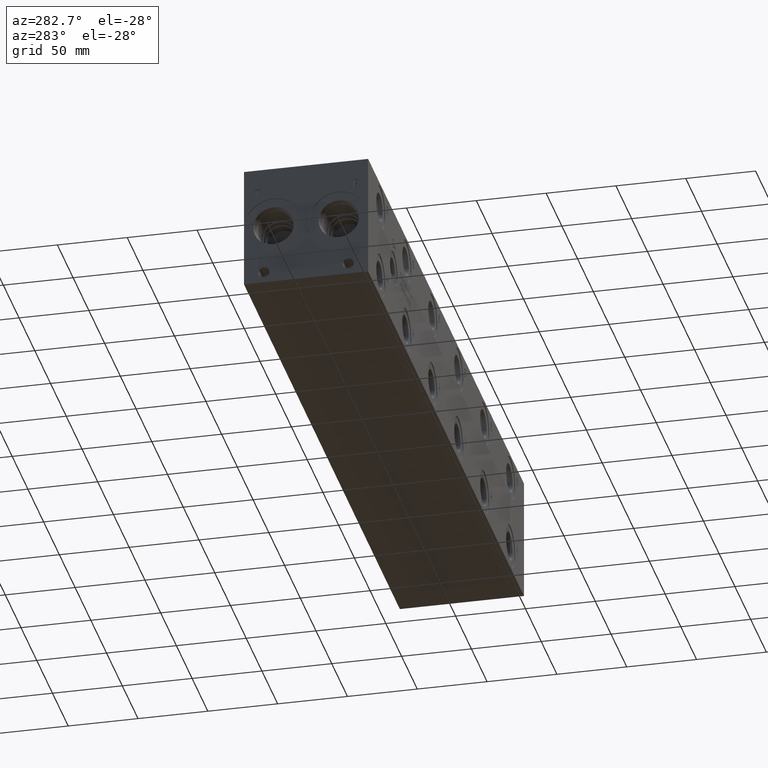
[diagram: clean part render]
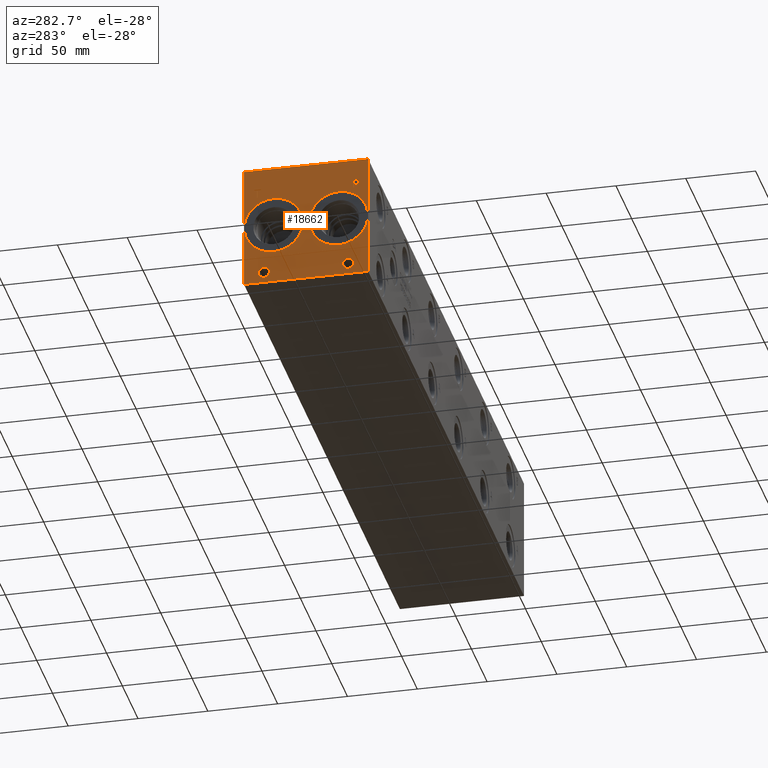
[diagram: same view with one face highlighted and labeled with its STEP entity id]
A machine part, auxiliary view. The second image highlights one B-rep face of the part: STEP entity #18662.
In plain terms, the highlighted planar face has unit normal (-1, 0, 0).
Its self-contained STEP definition (entity closure, byte-faithful):
#562=CIRCLE('',#19509,21.0185);
#563=CIRCLE('',#19510,21.0185);
#564=CIRCLE('',#19511,21.0185);
#565=CIRCLE('',#19512,21.0185);
#566=CIRCLE('',#19513,3.9624);
#567=CIRCLE('',#19514,3.9624);
#568=CIRCLE('',#19515,3.9624);
#569=CIRCLE('',#19516,3.9624);
#1553=B_SPLINE_CURVE_WITH_KNOTS('',2,(#30687,#30688,#30689,#30690),
 .UNSPECIFIED.,.F.,.F.,(3,1,3),(0.,1.,2.),.UNSPECIFIED.);
#1555=B_SPLINE_CURVE_WITH_KNOTS('',2,(#30708,#30709,#30710,#30711),
 .UNSPECIFIED.,.F.,.F.,(3,1,3),(0.,1.,2.),.UNSPECIFIED.);
#1557=B_SPLINE_CURVE_WITH_KNOTS('',2,(#30757,#30758,#30759,#30760),
 .UNSPECIFIED.,.F.,.F.,(3,1,3),(0.,1.,2.),.UNSPECIFIED.);
#1559=B_SPLINE_CURVE_WITH_KNOTS('',2,(#30775,#30776,#30777,#30778),
 .UNSPECIFIED.,.F.,.F.,(3,1,3),(0.,1.,2.),.UNSPECIFIED.);
#1679=FACE_BOUND('',#3440,.T.);
#1680=FACE_BOUND('',#3441,.T.);
#1681=FACE_BOUND('',#3442,.T.);
#1682=FACE_BOUND('',#3443,.T.);
#1683=FACE_BOUND('',#3444,.T.);
#1684=FACE_BOUND('',#3445,.T.);
#2366=FACE_OUTER_BOUND('',#3439,.T.);
#3439=EDGE_LOOP('',(#14786,#14787,#14788,#14789));
#3440=EDGE_LOOP('',(#14790,#14791,#14792,#14793,#14794,#14795,#14796,#14797));
#3441=EDGE_LOOP('',(#14798,#14799));
#3442=EDGE_LOOP('',(#14800,#14801));
#3443=EDGE_LOOP('',(#14802,#14803));
#3444=EDGE_LOOP('',(#14804,#14805));
#3445=EDGE_LOOP('',(#14806,#14807,#14808,#14809,#14810,#14811,#14812,#14813,
#14814));
#4031=LINE('',#24937,#5613);
#5066=LINE('',#30314,#6648);
#5070=LINE('',#30322,#6652);
#5073=LINE('',#30328,#6655);
#5076=LINE('',#30334,#6658);
#5079=LINE('',#30340,#6661);
#5082=LINE('',#30346,#6664);
#5085=LINE('',#30352,#6667);
#5088=LINE('',#30357,#6670);
#5141=LINE('',#30720,#6723);
#5144=LINE('',#30726,#6726);
#5147=LINE('',#30732,#6729);
#5150=LINE('',#30738,#6732);
#5153=LINE('',#30744,#6735);
#5157=LINE('',#30786,#6739);
#5158=LINE('',#30788,#6740);
#5159=LINE('',#30789,#6741);
#5613=VECTOR('',#20563,10.);
#6648=VECTOR('',#22298,10.);
#6652=VECTOR('',#22304,10.);
#6655=VECTOR('',#22309,10.);
#6658=VECTOR('',#22314,10.);
#6661=VECTOR('',#22319,10.);
#6664=VECTOR('',#22324,10.);
#6667=VECTOR('',#22329,10.);
#6670=VECTOR('',#22334,10.);
#6723=VECTOR('',#22433,10.);
#6726=VECTOR('',#22438,10.);
#6729=VECTOR('',#22443,10.);
#6732=VECTOR('',#22448,10.);
#6735=VECTOR('',#22453,10.);
#6739=VECTOR('',#22461,10.);
#6740=VECTOR('',#22462,10.);
#6741=VECTOR('',#22463,10.);
#7181=VERTEX_POINT('',#24930);
#7184=VERTEX_POINT('',#24935);
#8167=VERTEX_POINT('',#30312);
#8168=VERTEX_POINT('',#30313);
#8171=VERTEX_POINT('',#30321);
#8173=VERTEX_POINT('',#30327);
#8175=VERTEX_POINT('',#30333);
#8177=VERTEX_POINT('',#30339);
#8179=VERTEX_POINT('',#30345);
#8181=VERTEX_POINT('',#30351);
#8239=VERTEX_POINT('',#30685);
#8240=VERTEX_POINT('',#30686);
#8243=VERTEX_POINT('',#30707);
#8245=VERTEX_POINT('',#30719);
#8247=VERTEX_POINT('',#30725);
#8249=VERTEX_POINT('',#30731);
#8251=VERTEX_POINT('',#30737);
#8253=VERTEX_POINT('',#30743);
#8255=VERTEX_POINT('',#30756);
#8257=VERTEX_POINT('',#30785);
#8258=VERTEX_POINT('',#30787);
#8259=VERTEX_POINT('',#30790);
#8260=VERTEX_POINT('',#30791);
#8261=VERTEX_POINT('',#30794);
#8262=VERTEX_POINT('',#30795);
#8263=VERTEX_POINT('',#30798);
#8264=VERTEX_POINT('',#30799);
#8265=VERTEX_POINT('',#30802);
#8266=VERTEX_POINT('',#30803);
#9053=EDGE_CURVE('',#7181,#7184,#4031,.T.);
#10496=EDGE_CURVE('',#8167,#8168,#5066,.T.);
#10500=EDGE_CURVE('',#8171,#8167,#5070,.T.);
#10503=EDGE_CURVE('',#8173,#8171,#5073,.T.);
#10506=EDGE_CURVE('',#8175,#8173,#5076,.T.);
#10509=EDGE_CURVE('',#8177,#8175,#5079,.T.);
#10512=EDGE_CURVE('',#8179,#8177,#5082,.T.);
#10515=EDGE_CURVE('',#8181,#8179,#5085,.T.);
#10518=EDGE_CURVE('',#8168,#8181,#5088,.T.);
#10600=EDGE_CURVE('',#8239,#8240,#1553,.T.);
#10604=EDGE_CURVE('',#8243,#8239,#1555,.T.);
#10607=EDGE_CURVE('',#8245,#8243,#5141,.T.);
#10610=EDGE_CURVE('',#8247,#8245,#5144,.T.);
#10613=EDGE_CURVE('',#8249,#8247,#5147,.T.);
#10616=EDGE_CURVE('',#8251,#8249,#5150,.T.);
#10619=EDGE_CURVE('',#8253,#8251,#5153,.T.);
#10622=EDGE_CURVE('',#8255,#8253,#1557,.T.);
#10625=EDGE_CURVE('',#8240,#8255,#1559,.T.);
#10627=EDGE_CURVE('',#8257,#7181,#5157,.T.);
#10628=EDGE_CURVE('',#8258,#7184,#5158,.T.);
#10629=EDGE_CURVE('',#8257,#8258,#5159,.T.);
#10630=EDGE_CURVE('',#8259,#8260,#562,.T.);
#10631=EDGE_CURVE('',#8260,#8259,#563,.T.);
#10632=EDGE_CURVE('',#8261,#8262,#564,.T.);
#10633=EDGE_CURVE('',#8262,#8261,#565,.T.);
#10634=EDGE_CURVE('',#8263,#8264,#566,.T.);
#10635=EDGE_CURVE('',#8264,#8263,#567,.T.);
#10636=EDGE_CURVE('',#8265,#8266,#568,.T.);
#10637=EDGE_CURVE('',#8266,#8265,#569,.T.);
#14786=ORIENTED_EDGE('',*,*,#10627,.T.);
#14787=ORIENTED_EDGE('',*,*,#9053,.T.);
#14788=ORIENTED_EDGE('',*,*,#10628,.F.);
#14789=ORIENTED_EDGE('',*,*,#10629,.F.);
#14790=ORIENTED_EDGE('',*,*,#10496,.T.);
#14791=ORIENTED_EDGE('',*,*,#10518,.T.);
#14792=ORIENTED_EDGE('',*,*,#10515,.T.);
#14793=ORIENTED_EDGE('',*,*,#10512,.T.);
#14794=ORIENTED_EDGE('',*,*,#10509,.T.);
#14795=ORIENTED_EDGE('',*,*,#10506,.T.);
#14796=ORIENTED_EDGE('',*,*,#10503,.T.);
#14797=ORIENTED_EDGE('',*,*,#10500,.T.);
#14798=ORIENTED_EDGE('',*,*,#10630,.T.);
#14799=ORIENTED_EDGE('',*,*,#10631,.T.);
#14800=ORIENTED_EDGE('',*,*,#10632,.T.);
#14801=ORIENTED_EDGE('',*,*,#10633,.T.);
#14802=ORIENTED_EDGE('',*,*,#10634,.T.);
#14803=ORIENTED_EDGE('',*,*,#10635,.T.);
#14804=ORIENTED_EDGE('',*,*,#10636,.T.);
#14805=ORIENTED_EDGE('',*,*,#10637,.T.);
#14806=ORIENTED_EDGE('',*,*,#10600,.T.);
#14807=ORIENTED_EDGE('',*,*,#10625,.T.);
#14808=ORIENTED_EDGE('',*,*,#10622,.T.);
#14809=ORIENTED_EDGE('',*,*,#10619,.T.);
#14810=ORIENTED_EDGE('',*,*,#10616,.T.);
#14811=ORIENTED_EDGE('',*,*,#10613,.T.);
#14812=ORIENTED_EDGE('',*,*,#10610,.T.);
#14813=ORIENTED_EDGE('',*,*,#10607,.T.);
#14814=ORIENTED_EDGE('',*,*,#10604,.T.);
#17358=PLANE('',#19508);
#18662=ADVANCED_FACE('',(#2366,#1679,#1680,#1681,#1682,#1683,#1684),#17358,
 .T.);
#19508=AXIS2_PLACEMENT_3D('',#30784,#22459,#22460);
#19509=AXIS2_PLACEMENT_3D('',#30792,#22464,#22465);
#19510=AXIS2_PLACEMENT_3D('',#30793,#22466,#22467);
#19511=AXIS2_PLACEMENT_3D('',#30796,#22468,#22469);
#19512=AXIS2_PLACEMENT_3D('',#30797,#22470,#22471);
#19513=AXIS2_PLACEMENT_3D('',#30800,#22472,#22473);
#19514=AXIS2_PLACEMENT_3D('',#30801,#22474,#22475);
#19515=AXIS2_PLACEMENT_3D('',#30804,#22476,#22477);
#19516=AXIS2_PLACEMENT_3D('',#30805,#22478,#22479);
#20563=DIRECTION('',(0.,0.,1.));
#22298=DIRECTION('',(0.,1.,1.0524411238433E-14));
#22304=DIRECTION('',(0.,3.17280044688052E-15,-1.));
#22309=DIRECTION('',(0.,1.,4.16909044227778E-15));
#22314=DIRECTION('',(0.,0.,-1.));
#22319=DIRECTION('',(0.,-1.,-3.47984565141734E-15));
#22324=DIRECTION('',(0.,0.,1.));
#22329=DIRECTION('',(0.,1.,0.));
#22334=DIRECTION('',(0.,-3.17280044688052E-15,1.));
#22433=DIRECTION('',(0.,-1.,-5.56775304226775E-15));
#22438=DIRECTION('',(0.,-3.14708893596576E-15,1.));
#22443=DIRECTION('',(0.,1.,0.));
#22448=DIRECTION('',(0.,3.75218139804999E-15,-1.));
#22453=DIRECTION('',(0.,1.,1.24172909575755E-14));
#22459=DIRECTION('center_axis',(-1.,0.,0.));
#22460=DIRECTION('ref_axis',(0.,-1.,0.));
#22461=DIRECTION('',(0.,-1.,0.));
#22462=DIRECTION('',(0.,-1.,0.));
#22463=DIRECTION('',(0.,0.,1.));
#22464=DIRECTION('center_axis',(1.,0.,0.));
#22465=DIRECTION('ref_axis',(0.,0.,1.));
#22466=DIRECTION('center_axis',(1.,0.,0.));
#22467=DIRECTION('ref_axis',(0.,0.,1.));
#22468=DIRECTION('center_axis',(1.,0.,0.));
#22469=DIRECTION('ref_axis',(0.,0.,1.));
#22470=DIRECTION('center_axis',(1.,0.,0.));
#22471=DIRECTION('ref_axis',(0.,0.,1.));
#22472=DIRECTION('center_axis',(1.,0.,0.));
#22473=DIRECTION('ref_axis',(0.,1.,0.));
#22474=DIRECTION('center_axis',(1.,0.,0.));
#22475=DIRECTION('ref_axis',(0.,1.,0.));
#22476=DIRECTION('center_axis',(1.,0.,0.));
#22477=DIRECTION('ref_axis',(0.,1.,0.));
#22478=DIRECTION('center_axis',(1.,0.,0.));
#22479=DIRECTION('ref_axis',(0.,1.,0.));
#24930=CARTESIAN_POINT('',(0.,0.,0.));
#24935=CARTESIAN_POINT('',(0.,0.,88.9));
#24937=CARTESIAN_POINT('',(0.,0.,0.));
#30312=CARTESIAN_POINT('',(0.,78.787084728547,67.46875));
#30313=CARTESIAN_POINT('',(0.,79.6310069200865,67.46875));
#30314=CARTESIAN_POINT('',(0.,83.8435423642731,67.46875));
#30321=CARTESIAN_POINT('',(0.,78.787084728547,73.0674533194815));
#30322=CARTESIAN_POINT('',(0.,78.7870847285471,36.5337266597407));
#30327=CARTESIAN_POINT('',(0.,76.6566957816119,73.0674533194815));
#30328=CARTESIAN_POINT('',(0.,82.7783478908058,73.0674533194815));
#30333=CARTESIAN_POINT('',(0.,76.6566957816119,73.8187499046325));
#30334=CARTESIAN_POINT('',(0.,76.6566957816119,36.9093749523163));
#30339=CARTESIAN_POINT('',(0.,81.7613958670216,73.8187499046326));
#30340=CARTESIAN_POINT('',(0.,85.3306979335107,73.8187499046326));
#30345=CARTESIAN_POINT('',(0.,81.7613958670216,73.0674533194815));
#30346=CARTESIAN_POINT('',(0.,81.7613958670216,36.5337266597408));
#30351=CARTESIAN_POINT('',(0.,79.6310069200865,73.0674533194815));
#30352=CARTESIAN_POINT('',(0.,84.2655034600432,73.0674533194815));
#30357=CARTESIAN_POINT('',(0.,79.6310069200866,33.734375));
#30685=CARTESIAN_POINT('',(0.,7.21193279764059,73.4225181439707));
#30686=CARTESIAN_POINT('',(0.,6.455490345468,71.9044873726039));
#30687=CARTESIAN_POINT('Ctrl Pts',(0.,7.21193279764059,73.4225181439707));
#30688=CARTESIAN_POINT('Ctrl Pts',(0.,6.85686797315142,73.1806623939563));
#30689=CARTESIAN_POINT('Ctrl Pts',(0.,6.455490345468,72.4345116758269));
#30690=CARTESIAN_POINT('Ctrl Pts',(0.,6.455490345468,71.9044873726039));
#30707=CARTESIAN_POINT('',(0.,8.87404784561168,73.8187499046325));
#30708=CARTESIAN_POINT('Ctrl Pts',(0.,8.87404784561168,73.8187499046325));
#30709=CARTESIAN_POINT('Ctrl Pts',(0.,8.30800247323763,73.8187499046325));
#30710=CARTESIAN_POINT('Ctrl Pts',(0.,7.51553895191395,73.6334986918556));
#30711=CARTESIAN_POINT('Ctrl Pts',(0.,7.21193279764059,73.4225181439707));
#30719=CARTESIAN_POINT('',(0.,10.4692666223022,73.8187499046326));
#30720=CARTESIAN_POINT('',(0.,49.6846333111509,73.8187499046328));
#30725=CARTESIAN_POINT('',(0.,10.4692666223022,67.46875));
#30726=CARTESIAN_POINT('',(0.,10.4692666223023,33.7343749999999));
#30731=CARTESIAN_POINT('',(0.,9.62534443076272,67.46875));
#30732=CARTESIAN_POINT('',(0.,49.2626722153814,67.46875));
#30737=CARTESIAN_POINT('',(0.,9.62534443076271,69.8358488299279));
#30738=CARTESIAN_POINT('',(0.,9.62534443076284,34.9179244149638));
#30743=CARTESIAN_POINT('',(0.,8.91006891476277,69.8358488299278));
#30744=CARTESIAN_POINT('',(0.,48.9050344573809,69.8358488299283));
#30756=CARTESIAN_POINT('',(0.,7.01124398379889,70.4945198086904));
#30757=CARTESIAN_POINT('Ctrl Pts',(0.,7.01124398379889,70.4945198086904));
#30758=CARTESIAN_POINT('Ctrl Pts',(0.,7.34057947318016,70.1703301863307));
#30759=CARTESIAN_POINT('Ctrl Pts',(0.,8.2308144679139,69.8358488299278));
#30760=CARTESIAN_POINT('Ctrl Pts',(0.,8.91006891476277,69.8358488299278));
#30775=CARTESIAN_POINT('Ctrl Pts',(0.,6.455490345468,71.9044873726039));
#30776=CARTESIAN_POINT('Ctrl Pts',(0.,6.455490345468,71.4928180108773));
#30777=CARTESIAN_POINT('Ctrl Pts',(0.,6.7488047656982,70.7518131597695));
#30778=CARTESIAN_POINT('Ctrl Pts',(0.,7.01124398379889,70.4945198086904));
#30784=CARTESIAN_POINT('Origin',(0.,88.9,0.));
#30785=CARTESIAN_POINT('',(0.,88.9,0.));
#30786=CARTESIAN_POINT('',(0.,88.9,0.));
#30787=CARTESIAN_POINT('',(0.,88.9,88.9));
#30788=CARTESIAN_POINT('',(0.,88.9,88.9));
#30789=CARTESIAN_POINT('',(0.,88.9,0.));
#30790=CARTESIAN_POINT('',(0.,21.082,65.4685));
#30791=CARTESIAN_POINT('',(0.,21.082,23.4315));
#30792=CARTESIAN_POINT('Origin',(0.,21.082,44.45));
#30793=CARTESIAN_POINT('Origin',(0.,21.082,44.45));
#30794=CARTESIAN_POINT('',(0.,67.818,65.4685));
#30795=CARTESIAN_POINT('',(0.,67.818,23.4315));
#30796=CARTESIAN_POINT('Origin',(0.,67.818,44.45));
#30797=CARTESIAN_POINT('Origin',(0.,67.818,44.45));
#30798=CARTESIAN_POINT('',(0.,18.2372,7.92479999999999));
#30799=CARTESIAN_POINT('',(0.,10.3124,7.92479999999999));
#30800=CARTESIAN_POINT('Origin',(0.,14.2748,7.92479999999999));
#30801=CARTESIAN_POINT('Origin',(0.,14.2748,7.92479999999999));
#30802=CARTESIAN_POINT('',(0.,78.5876,7.92479999999999));
#30803=CARTESIAN_POINT('',(0.,70.6628,7.92479999999999));
#30804=CARTESIAN_POINT('Origin',(0.,74.6252,7.92479999999999));
#30805=CARTESIAN_POINT('Origin',(0.,74.6252,7.92479999999999));